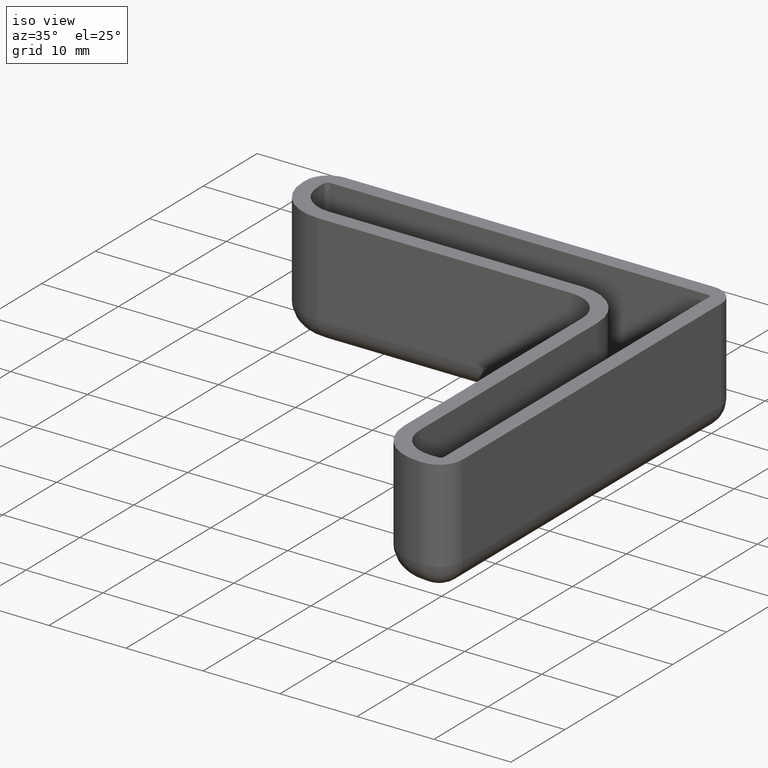
[diagram: clean part render]
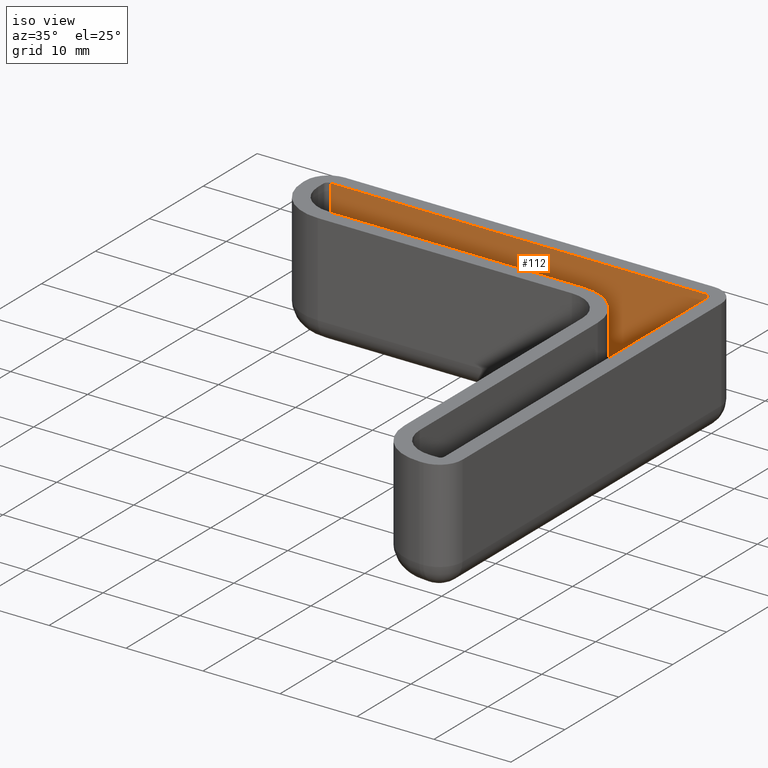
[diagram: same view with one face highlighted and labeled with its STEP entity id]
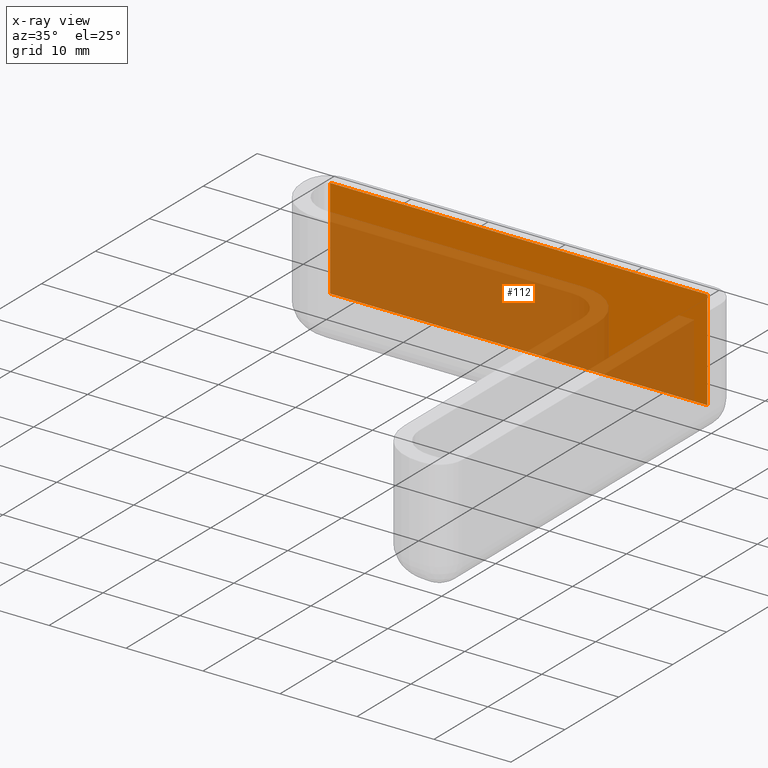
[diagram: x-ray of the same camera — body ghosted, the highlighted face saturated]
A machine part, iso view. The second image highlights one B-rep face of the part: STEP entity #112.
The next image is the same camera in x-ray: the body ghosted, the highlighted face saturated — about 66% of this face is hidden behind the body in this view.
In plain terms, the highlighted planar face has unit normal (-0, -1, 0).
Its self-contained STEP definition (entity closure, byte-faithful):
#112 = ADVANCED_FACE( '', ( #190 ), #191, .T. );
#190 = FACE_OUTER_BOUND( '', #269, .T. );
#191 = PLANE( '', #270 );
#269 = EDGE_LOOP( '', ( #562, #563, #564, #565 ) );
#270 = AXIS2_PLACEMENT_3D( '', #566, #567, #568 );
#562 = ORIENTED_EDGE( '', *, *, #667, .T. );
#563 = ORIENTED_EDGE( '', *, *, #609, .F. );
#564 = ORIENTED_EDGE( '', *, *, #668, .F. );
#565 = ORIENTED_EDGE( '', *, *, #598, .F. );
#566 = CARTESIAN_POINT( '', ( -0.500000000000000, 6.12303176911189E-017, 30.0000000000000 ) );
#567 = DIRECTION( '', ( -1.22460635382238E-016, -1.00000000000000, 0.000000000000000 ) );
#568 = DIRECTION( '', ( 1.00000000000000, -1.22460635382238E-016, 0.000000000000000 ) );
#598 = EDGE_CURVE( '', #712, #714, #715, .T. );
#609 = EDGE_CURVE( '', #730, #732, #733, .T. );
#667 = EDGE_CURVE( '', #712, #732, #817, .T. );
#668 = EDGE_CURVE( '', #714, #730, #818, .T. );
#712 = VERTEX_POINT( '', #873 );
#714 = VERTEX_POINT( '', #875 );
#715 = LINE( '', #876, #877 );
#730 = VERTEX_POINT( '', #898 );
#732 = VERTEX_POINT( '', #900 );
#733 = LINE( '', #901, #902 );
#817 = LINE( '', #1019, #1020 );
#818 = LINE( '', #1021, #1022 );
#873 = CARTESIAN_POINT( '', ( -49.5000000000000, 6.06180145142076E-015, 0.000000000000000 ) );
#875 = CARTESIAN_POINT( '', ( -0.500000000000000, 6.12303176911189E-017, 0.000000000000000 ) );
#876 = CARTESIAN_POINT( '', ( -0.999999999999996, 1.22460635382237E-016, 0.000000000000000 ) );
#877 = VECTOR( '', #1067, 1000.00000000000 );
#898 = CARTESIAN_POINT( '', ( -0.500000000000000, 6.12303176911189E-017, -13.0000000000000 ) );
#900 = CARTESIAN_POINT( '', ( -49.5000000000000, 6.06180145142076E-015, -13.0000000000000 ) );
#901 = CARTESIAN_POINT( '', ( -0.500000000000000, 6.12303176911189E-017, -13.0000000000000 ) );
#902 = VECTOR( '', #1086, 1000.00000000000 );
#1019 = CARTESIAN_POINT( '', ( -49.5000000000000, 6.06180145142076E-015, 30.0000000000000 ) );
#1020 = VECTOR( '', #1192, 1000.00000000000 );
#1021 = CARTESIAN_POINT( '', ( -0.500000000000000, 6.12303176911189E-017, 30.0000000000000 ) );
#1022 = VECTOR( '', #1193, 1000.00000000000 );
#1067 = DIRECTION( '', ( 1.00000000000000, -1.22460635382238E-016, 0.000000000000000 ) );
#1086 = DIRECTION( '', ( -1.00000000000000, 1.22460635382238E-016, 0.000000000000000 ) );
#1192 = DIRECTION( '', ( 0.000000000000000, 0.000000000000000, -1.00000000000000 ) );
#1193 = DIRECTION( '', ( 0.000000000000000, 0.000000000000000, -1.00000000000000 ) );